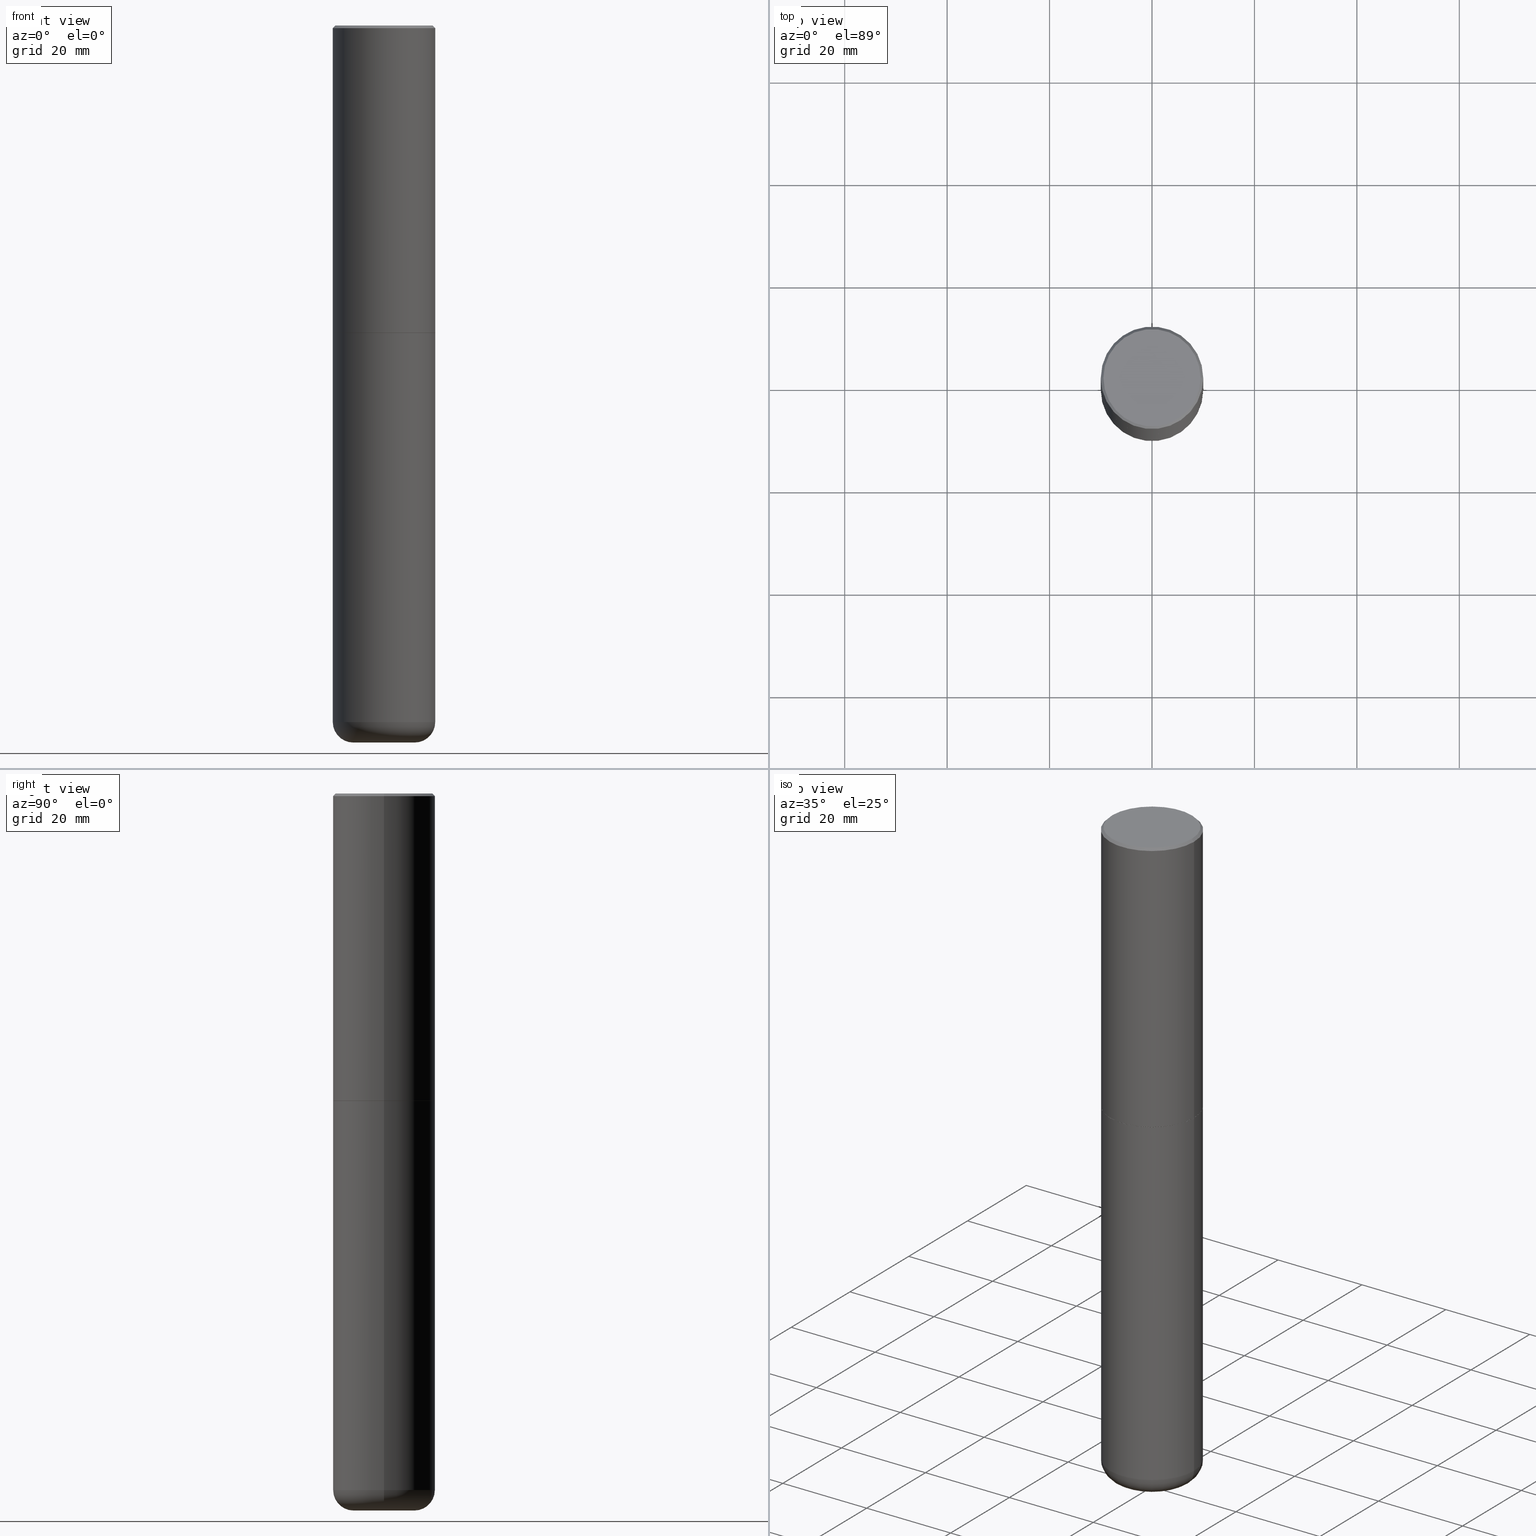
[diagram: canonical four-view strip — front | top / right | iso, engineering-drawing reading convention]
A machine part, canonical four-view strip (front | top / right | iso — engineering-drawing reading convention). The complete STEP part file that produces these views, byte-faithful:
ISO-10303-21;
HEADER;
FILE_DESCRIPTION (( 'STEP AP203' ),
    '1' );
FILE_NAME ('74862.STEP',
    '2024-05-02T19:25:09',
    ( '' ),
    ( '' ),
    'SwSTEP 2.0',
    'SolidWorks 2023',
    '' );
FILE_SCHEMA (( 'CONFIG_CONTROL_DESIGN' ));
ENDSEC;

DATA;
#1 = ORIENTED_EDGE ( 'NONE', *, *, #371, .T. ) ;
#2 = LINE ( 'NONE', #67, #36 ) ;
#3 = ORIENTED_EDGE ( 'NONE', *, *, #138, .F. ) ;
#4 = AXIS2_PLACEMENT_3D ( 'NONE', #26, #54, #183 ) ;
#5 = DIRECTION ( 'NONE',  ( -1.000000000000000000, 6.982962677686266711E-15, 0.000000000000000000 ) ) ;
#6 = APPROVAL ( #47, 'UNSPECIFIED' ) ;
#7 = CARTESIAN_POINT ( 'NONE',  ( -0.3937000000000001054, 2.679362779428220707E-15, -0.02000000000000008715 ) ) ;
#8 = ORIENTED_EDGE ( 'NONE', *, *, #17, .F. ) ;
#9 = VERTEX_POINT ( 'NONE', #107 ) ;
#10 = MECHANICAL_CONTEXT ( 'NONE', #149, 'mechanical' ) ;
#11 = AXIS2_PLACEMENT_3D ( 'NONE', #85, #112, #21 ) ;
#12 = CARTESIAN_POINT ( 'NONE',  ( -0.3736999999999999211, 2.644447966039789453E-15, 2.262311619753034352E-16 ) ) ;
#13 = ORIENTED_EDGE ( 'NONE', *, *, #59, .T. ) ;
#14 = SHAPE_DEFINITION_REPRESENTATION ( #83, #203 ) ;
#15 = CARTESIAN_POINT ( 'NONE',  ( -0.3937000000000002164, 2.797406750687515970E-15, -1.936584745033357576E-29 ) ) ;
#16 = DATE_AND_TIME ( #81, #405 ) ;
#17 = EDGE_CURVE ( 'NONE', #364, #9, #254, .T. ) ;
#18 = AXIS2_PLACEMENT_3D ( 'NONE', #301, #133, #182 ) ;
#19 = DIRECTION ( 'NONE',  ( 1.000000000000000000, -6.982962677686266711E-15, 0.000000000000000000 ) ) ;
#20 = APPROVAL_ROLE ( '' ) ;
#21 = DIRECTION ( 'NONE',  ( 1.000000000000000000, -6.982962677686261977E-15, 4.883557194083110659E-29 ) ) ;
#22 = CALENDAR_DATE ( 2024, 2, 5 ) ;
#23 = CARTESIAN_POINT ( 'NONE',  ( -0.3937000000000001054, 2.797406750687515181E-15, -1.936584745033357016E-29 ) ) ;
#24 = CC_DESIGN_SECURITY_CLASSIFICATION ( #95, ( #116 ) ) ;
#25 = FACE_OUTER_BOUND ( 'NONE', #256, .T. ) ;
#26 = CARTESIAN_POINT ( 'NONE',  ( 5.776686413970529753E-29, -8.247577218615279626E-15, -2.362200000000000077 ) ) ;
#27 = CARTESIAN_POINT ( 'NONE',  ( 5.776686413970529753E-29, -8.247577218615279626E-15, -2.362200000000000077 ) ) ;
#28 = EDGE_CURVE ( 'NONE', #9, #357, #294, .T. ) ;
#29 = DIRECTION ( 'NONE',  ( -1.000000000000000000, 7.105427357601006592E-15, 0.000000000000000000 ) ) ;
#30 = EDGE_LOOP ( 'NONE', ( #325, #336 ) ) ;
#31 = ORIENTED_EDGE ( 'NONE', *, *, #237, .T. ) ;
#32 = DESIGN_CONTEXT ( 'detailed design', #38, 'design' ) ;
#33 = DIRECTION ( 'NONE',  ( -2.445468806185136597E-29, 3.491481338843145583E-15, 1.000000000000000000 ) ) ;
#34 = EDGE_LOOP ( 'NONE', ( #251, #330, #381, #363 ) ) ;
#35 = VECTOR ( 'NONE', #297, 39.37007874015748143 ) ;
#36 = VECTOR ( 'NONE', #318, 39.37007874015748143 ) ;
#37 = EDGE_LOOP ( 'NONE', ( #167, #77, #123, #285 ) ) ;
#38 = APPLICATION_CONTEXT ( 'configuration controlled 3d designs of mechanical parts and assemblies' ) ;
#39 = DIRECTION ( 'NONE',  ( -2.445468806185136877E-29, 3.491481338843145188E-15, 1.000000000000000000 ) ) ;
#40 = CIRCLE ( 'NONE', #372, 0.3937000000000000499 ) ;
#41 = AXIS2_PLACEMENT_3D ( 'NONE', #415, #127, #5 ) ;
#42 = ORIENTED_EDGE ( 'NONE', *, *, #79, .F. ) ;
#43 = PERSON_AND_ORGANIZATION_ROLE ( 'design_owner' ) ;
#44 = DIRECTION ( 'NONE',  ( -2.445468806185136597E-29, 3.491481338843145583E-15, 1.000000000000000000 ) ) ;
#45 = PERSON_AND_ORGANIZATION ( #328, #88 ) ;
#46 = DIRECTION ( 'NONE',  ( -0.7071067811865454633, 2.468850131082235367E-15, -0.7071067811865495711 ) ) ;
#47 = APPROVAL_STATUS ( 'not_yet_approved' ) ;
#48 = AXIS2_PLACEMENT_3D ( 'NONE', #145, #147, #348 ) ;
#49 = AXIS2_PLACEMENT_3D ( 'NONE', #370, #377, #375 ) ;
#50 = CARTESIAN_POINT ( 'NONE',  ( -0.3937000000000002720, -1.359550931339130834E-15, -2.361199999999999743 ) ) ;
#51 = DATE_AND_TIME ( #207, #386 ) ;
#52 = LINE ( 'NONE', #180, #412 ) ;
#53 = CC_DESIGN_PERSON_AND_ORGANIZATION_ASSIGNMENT ( #298, #267, ( #159 ) ) ;
#54 = DIRECTION ( 'NONE',  ( -2.445468806185136597E-29, 3.491481338843145583E-15, 1.000000000000000000 ) ) ;
#55 = AXIS2_PLACEMENT_3D ( 'NONE', #250, #281, #311 ) ;
#56 = FACE_OUTER_BOUND ( 'NONE', #91, .T. ) ;
#57 = EDGE_CURVE ( 'NONE', #355, #96, #234, .T. ) ;
#58 = CARTESIAN_POINT ( 'NONE',  ( 0.3937000000000002720, -1.099327814348151984E-14, -2.361199999999999743 ) ) ;
#59 = EDGE_CURVE ( 'NONE', #93, #416, #290, .T. ) ;
#60 = FACE_OUTER_BOUND ( 'NONE', #37, .T. ) ;
#61 = ORIENTED_EDGE ( 'NONE', *, *, #154, .F. ) ;
#62 = DIRECTION ( 'NONE',  ( 1.000000000000000000, -6.982962677686266711E-15, 4.876176775795935793E-29 ) ) ;
#63 = APPROVAL_PERSON_ORGANIZATION ( #235, #276, #335 ) ;
#64 = EDGE_LOOP ( 'NONE', ( #365, #42 ) ) ;
#65 = ORIENTED_EDGE ( 'NONE', *, *, #333, .F. ) ;
#66 = EDGE_CURVE ( 'NONE', #158, #128, #101, .T. ) ;
#67 = CARTESIAN_POINT ( 'NONE',  ( -0.3926999999999999935, -5.457275895285365059E-15, -2.362200000000000077 ) ) ;
#68 = ORIENTED_EDGE ( 'NONE', *, *, #260, .F. ) ;
#69 = CIRCLE ( 'NONE', #361, 0.3926999999999999935 ) ;
#70 = EDGE_CURVE ( 'NONE', #128, #416, #175, .T. ) ;
#71 = ORIENTED_EDGE ( 'NONE', *, *, #263, .T. ) ;
#72 = CARTESIAN_POINT ( 'NONE',  ( 0.000000000000000000, 0.000000000000000000, 0.000000000000000000 ) ) ;
#73 = ORIENTED_EDGE ( 'NONE', *, *, #138, .T. ) ;
#74 = APPLICATION_PROTOCOL_DEFINITION ( 'international standard', 'config_control_design', 1994, #38 ) ;
#75 = CARTESIAN_POINT ( 'NONE',  ( 0.2362000000000000210, -2.034381431703735354E-14, -5.354300000000000281 ) ) ;
#76 = PERSON_AND_ORGANIZATION ( #328, #88 ) ;
#77 = ORIENTED_EDGE ( 'NONE', *, *, #57, .T. ) ;
#78 = COORDINATED_UNIVERSAL_TIME_OFFSET ( 5, 0, .BEHIND. ) ;
#79 = EDGE_CURVE ( 'NONE', #169, #99, #268, .T. ) ;
#80 = EDGE_LOOP ( 'NONE', ( #197, #312 ) ) ;
#81 = CALENDAR_DATE ( 2024, 2, 5 ) ;
#82 = DIRECTION ( 'NONE',  ( 1.000000000000000000, -6.982962677686270655E-15, 0.000000000000000000 ) ) ;
#83 = PRODUCT_DEFINITION_SHAPE ( 'NONE', 'NONE',  #159 ) ;
#84 = AXIS2_PLACEMENT_3D ( 'NONE', #388, #98, #284 ) ;
#85 = CARTESIAN_POINT ( 'NONE',  ( 1.309377362895707575E-28, -1.869443853256785386E-14, -5.354300000000000281 ) ) ;
#86 = DIRECTION ( 'NONE',  ( 1.000000000000000000, -6.982962677686266711E-15, 0.000000000000000000 ) ) ;
#87 = CARTESIAN_POINT ( 'NONE',  ( 0.3937000000000002164, -2.749192406205084794E-15, 1.919750796630861012E-29 ) ) ;
#88 = ORGANIZATION ( 'UNSPECIFIED', 'UNSPECIFIED', '' ) ;
#89 = FACE_OUTER_BOUND ( 'NONE', #64, .T. ) ;
#90 = PLANE ( 'NONE',  #271 ) ;
#91 = EDGE_LOOP ( 'NONE', ( #1, #288 ) ) ;
#92 = CARTESIAN_POINT ( 'NONE',  ( 2.609533152651356620E-15, 0.3736999999999999211, -1.191650995338022328E-15 ) ) ;
#93 = VERTEX_POINT ( 'NONE', #12 ) ;
#94 = DIRECTION ( 'NONE',  ( -2.445468806185136597E-29, 3.491481338843145583E-15, 1.000000000000000000 ) ) ;
#95 = SECURITY_CLASSIFICATION ( '', '', #404 ) ;
#96 = VERTEX_POINT ( 'NONE', #136 ) ;
#97 = EDGE_CURVE ( 'NONE', #93, #355, #187, .T. ) ;
#98 = DIRECTION ( 'NONE',  ( -2.445468806185136597E-29, 3.491481338843145583E-15, 1.000000000000000000 ) ) ;
#99 = VERTEX_POINT ( 'NONE', #389 ) ;
#100 = ADVANCED_FACE ( 'NONE', ( #105 ), #259, .T. ) ;
#101 = CIRCLE ( 'NONE', #195, 0.3937000000000002720 ) ;
#102 = ORIENTED_EDGE ( 'NONE', *, *, #79, .T. ) ;
#103 = AXIS2_PLACEMENT_3D ( 'NONE', #184, #246, #82 ) ;
#104 = ORIENTED_EDGE ( 'NONE', *, *, #97, .F. ) ;
#105 = FACE_OUTER_BOUND ( 'NONE', #383, .T. ) ;
#106 = PERSON_AND_ORGANIZATION ( #328, #88 ) ;
#107 = CARTESIAN_POINT ( 'NONE',  ( 0.3936999999999999389, -2.144363093877293707E-14, -5.354300000000000281 ) ) ;
#108 = APPROVAL_DATE_TIME ( #51, #6 ) ;
#109 = AXIS2_PLACEMENT_3D ( 'NONE', #27, #155, #216 ) ;
#110 = EDGE_LOOP ( 'NONE', ( #31, #266, #61, #8 ) ) ;
#111 = CALENDAR_DATE ( 2024, 2, 5 ) ;
#112 = DIRECTION ( 'NONE',  ( -2.445468806185136597E-29, 3.491481338843145583E-15, 1.000000000000000000 ) ) ;
#113 = APPROVAL_DATE_TIME ( #302, #276 ) ;
#114 = CC_DESIGN_PERSON_AND_ORGANIZATION_ASSIGNMENT ( #316, #43, ( #142 ) ) ;
#115 = DIRECTION ( 'NONE',  ( -2.445468806185136597E-29, 3.491481338843145583E-15, 1.000000000000000000 ) ) ;
#116 = PRODUCT_DEFINITION_FORMATION_WITH_SPECIFIED_SOURCE ( 'ANY', '', #142, .NOT_KNOWN. ) ;
#117 = ADVANCED_FACE ( 'NONE', ( #305 ), #248, .T. ) ;
#118 = LINE ( 'NONE', #23, #337 ) ;
#119 = CARTESIAN_POINT ( 'NONE',  ( -0.3926999999999999935, -5.451977440937141868E-15, -2.362200000000000077 ) ) ;
#120 = DIRECTION ( 'NONE',  ( -2.445468806185136877E-29, 3.491481338843145188E-15, 1.000000000000000000 ) ) ;
#121 =( GEOMETRIC_REPRESENTATION_CONTEXT ( 3 ) GLOBAL_UNCERTAINTY_ASSIGNED_CONTEXT ( ( #320 ) ) GLOBAL_UNIT_ASSIGNED_CONTEXT ( ( #226, #132, #170 ) ) REPRESENTATION_CONTEXT ( 'NONE', 'WORKASPACE' ) );
#122 = CARTESIAN_POINT ( 'NONE',  ( 0.2362000000000000766, -2.089372262790514846E-14, -5.511800000000000033 ) ) ;
#123 = ORIENTED_EDGE ( 'NONE', *, *, #333, .T. ) ;
#124 = CC_DESIGN_PERSON_AND_ORGANIZATION_ASSIGNMENT ( #174, #395, ( #116 ) ) ;
#125 = CARTESIAN_POINT ( 'NONE',  ( -0.3936999999999999389, -1.589703178188033670E-14, -5.354300000000000281 ) ) ;
#126 = ORIENTED_EDGE ( 'NONE', *, *, #215, .T. ) ;
#127 = DIRECTION ( 'NONE',  ( 2.445468806185136597E-29, -3.491481338843145583E-15, -1.000000000000000000 ) ) ;
#128 = VERTEX_POINT ( 'NONE', #50 ) ;
#129 = LENGTH_MEASURE_WITH_UNIT ( LENGTH_MEASURE( 0.02539999999999999897 ), #230 );
#130 = FACE_OUTER_BOUND ( 'NONE', #257, .T. ) ;
#131 = ORIENTED_EDGE ( 'NONE', *, *, #215, .F. ) ;
#132 =( NAMED_UNIT ( * ) PLANE_ANGLE_UNIT ( ) SI_UNIT ( $, .RADIAN. ) );
#133 = DIRECTION ( 'NONE',  ( -2.445468806185136597E-29, 3.491481338843145583E-15, 1.000000000000000000 ) ) ;
#134 = VERTEX_POINT ( 'NONE', #214 ) ;
#135 = AXIS2_PLACEMENT_3D ( 'NONE', #189, #314, #29 ) ;
#136 = CARTESIAN_POINT ( 'NONE',  ( 0.3937000000000001054, -2.770807688499516128E-15, -0.02000000000000008715 ) ) ;
#137 = EDGE_CURVE ( 'NONE', #99, #169, #69, .T. ) ;
#138 = EDGE_CURVE ( 'NONE', #350, #9, #360, .T. ) ;
#139 = ORIENTED_EDGE ( 'NONE', *, *, #146, .F. ) ;
#140 = CALENDAR_DATE ( 2024, 2, 5 ) ;
#141 = CARTESIAN_POINT ( 'NONE',  ( 5.776686413970529753E-29, -8.247577218615279626E-15, -2.362200000000000077 ) ) ;
#142 = PRODUCT ( '74862', '74862', '', ( #10 ) ) ;
#143 = AXIS2_PLACEMENT_3D ( 'NONE', #264, #399, #177 ) ;
#144 = AXIS2_PLACEMENT_3D ( 'NONE', #72, #291, #258 ) ;
#145 = CARTESIAN_POINT ( 'NONE',  ( 1.309377362895707575E-28, -1.869443853256785386E-14, -5.354300000000000281 ) ) ;
#146 = EDGE_CURVE ( 'NONE', #350, #134, #118, .T. ) ;
#147 = DIRECTION ( 'NONE',  ( -2.445468806185136597E-29, 3.491481338843145583E-15, 1.000000000000000000 ) ) ;
#148 = PERSON_AND_ORGANIZATION_ROLE ( 'design_supplier' ) ;
#149 = APPLICATION_CONTEXT ( 'configuration controlled 3d designs of mechanical parts and assemblies' ) ;
#150 = DIRECTION ( 'NONE',  ( -2.445468806185136877E-29, 3.491481338843145188E-15, 1.000000000000000000 ) ) ;
#151 = APPROVAL_PERSON_ORGANIZATION ( #369, #6, #20 ) ;
#152 = PLANE ( 'NONE',  #165 ) ;
#153 = DIRECTION ( 'NONE',  ( 0.7071067811866199593, -2.468850131083015945E-15, 0.7071067811864750752 ) ) ;
#154 = EDGE_CURVE ( 'NONE', #9, #350, #243, .T. ) ;
#155 = DIRECTION ( 'NONE',  ( -2.445468806185136597E-29, 3.491481338843145583E-15, 1.000000000000000000 ) ) ;
#156 = AXIS2_PLACEMENT_3D ( 'NONE', #309, #244, #86 ) ;
#157 = CARTESIAN_POINT ( 'NONE',  ( 4.890937612370294178E-31, -6.982962677686321191E-17, -0.02000000000000008715 ) ) ;
#158 = VERTEX_POINT ( 'NONE', #58 ) ;
#159 = PRODUCT_DEFINITION ( 'UNKNOWN', '', #116, #32 ) ;
#160 = DIRECTION ( 'NONE',  ( 1.000000000000000000, -6.982962677686266711E-15, 0.000000000000000000 ) ) ;
#161 = ORIENTED_EDGE ( 'NONE', *, *, #332, .F. ) ;
#162 = DIRECTION ( 'NONE',  ( -1.000000000000000000, 6.982962677686265922E-15, -4.876176775795935793E-29 ) ) ;
#163 = DIRECTION ( 'NONE',  ( 2.445468806185136597E-29, -3.491481338843145583E-15, -1.000000000000000000 ) ) ;
#164 = AXIS2_PLACEMENT_3D ( 'NONE', #75, #326, #368 ) ;
#165 = AXIS2_PLACEMENT_3D ( 'NONE', #279, #339, #186 ) ;
#166 = CC_DESIGN_PERSON_AND_ORGANIZATION_ASSIGNMENT ( #106, #148, ( #116 ) ) ;
#167 = ORIENTED_EDGE ( 'NONE', *, *, #231, .F. ) ;
#168 = DIRECTION ( 'NONE',  ( 1.000000000000000000, -6.982962677686270655E-15, 0.000000000000000000 ) ) ;
#169 = VERTEX_POINT ( 'NONE', #119 ) ;
#170 =( NAMED_UNIT ( * ) SI_UNIT ( $, .STERADIAN. ) SOLID_ANGLE_UNIT ( ) );
#171 = ORIENTED_EDGE ( 'NONE', *, *, #66, .F. ) ;
#172 = VERTEX_POINT ( 'NONE', #212 ) ;
#173 = ORIENTED_EDGE ( 'NONE', *, *, #205, .F. ) ;
#174 = PERSON_AND_ORGANIZATION ( #328, #88 ) ;
#175 = LINE ( 'NONE', #15, #35 ) ;
#176 = DATE_TIME_ROLE ( 'classification_date' ) ;
#177 = DIRECTION ( 'NONE',  ( 1.000000000000000000, -6.982962677686266711E-15, 4.877734241229876808E-29 ) ) ;
#178 = AXIS2_PLACEMENT_3D ( 'NONE', #345, #407, #19 ) ;
#179 = AXIS2_PLACEMENT_3D ( 'NONE', #225, #163, #387 ) ;
#180 = CARTESIAN_POINT ( 'NONE',  ( 0.3926999999999999935, -1.098978666214267525E-14, -2.362200000000000077 ) ) ;
#181 = APPROVAL_ROLE ( '' ) ;
#182 = DIRECTION ( 'NONE',  ( 1.000000000000000000, -6.982962677686266711E-15, 4.876176775795935793E-29 ) ) ;
#183 = DIRECTION ( 'NONE',  ( 1.000000000000000000, -6.982962677686265133E-15, 0.000000000000000000 ) ) ;
#184 = CARTESIAN_POINT ( 'NONE',  ( 1.347893496593123646E-28, -1.924434684343564878E-14, -5.511800000000000033 ) ) ;
#185 = DIRECTION ( 'NONE',  ( 1.000000000000000000, -6.982962677686267499E-15, 0.000000000000000000 ) ) ;
#186 = DIRECTION ( 'NONE',  ( 1.000000000000000000, -6.982962677686265922E-15, 4.876176775795935793E-29 ) ) ;
#187 = CIRCLE ( 'NONE', #143, 0.3736999999999999211 ) ;
#188 = AXIS2_PLACEMENT_3D ( 'NONE', #194, #323, #168 ) ;
#189 = CARTESIAN_POINT ( 'NONE',  ( -0.2362000000000000210, -1.701613659070249589E-14, -5.354300000000000281 ) ) ;
#190 = ADVANCED_FACE ( 'NONE', ( #56 ), #247, .F. ) ;
#191 = ORIENTED_EDGE ( 'NONE', *, *, #376, .T. ) ;
#192 = CARTESIAN_POINT ( 'NONE',  ( 1.347893496593123646E-28, -1.924434684343564878E-14, -5.511800000000000033 ) ) ;
#193 = ORIENTED_EDGE ( 'NONE', *, *, #28, .T. ) ;
#194 = CARTESIAN_POINT ( 'NONE',  ( 1.347893496593123646E-28, -1.924434684343564878E-14, -5.511800000000000033 ) ) ;
#195 = AXIS2_PLACEMENT_3D ( 'NONE', #327, #44, #293 ) ;
#196 = TOROIDAL_SURFACE ( 'NONE', #211, 0.2362000000000000210, 0.1574999999999998346 ) ;
#197 = ORIENTED_EDGE ( 'NONE', *, *, #97, .T. ) ;
#198 = EDGE_LOOP ( 'NONE', ( #319, #102, #126, #161 ) ) ;
#199 = DIRECTION ( 'NONE',  ( 0.7071067811865454633, -7.319954787623248157E-15, -0.7071067811865495711 ) ) ;
#200 = ADVANCED_FACE ( 'NONE', ( #274 ), #307, .T. ) ;
#201 = APPROVAL_STATUS ( 'not_yet_approved' ) ;
#202 = CC_DESIGN_APPROVAL ( #6, ( #95 ) ) ;
#203 = ADVANCED_BREP_SHAPE_REPRESENTATION ( '74862', ( #304, #299, #144 ), #121 ) ;
#204 = CARTESIAN_POINT ( 'NONE',  ( 0.3937000000000001054, -2.749192406205084005E-15, 1.919750796630860452E-29 ) ) ;
#205 = EDGE_CURVE ( 'NONE', #134, #357, #40, .T. ) ;
#206 = ORIENTED_EDGE ( 'NONE', *, *, #57, .F. ) ;
#207 = CALENDAR_DATE ( 2024, 2, 5 ) ;
#208 = DIRECTION ( 'NONE',  ( 1.000000000000000000, -6.982962677686261977E-15, 4.883557194083110659E-29 ) ) ;
#209 = DATE_AND_TIME ( #22, #228 ) ;
#210 = CLOSED_SHELL ( 'NONE', ( #289, #200, #342, #324, #400, #352, #296, #402 ) ) ;
#211 = AXIS2_PLACEMENT_3D ( 'NONE', #308, #213, #208 ) ;
#212 = CARTESIAN_POINT ( 'NONE',  ( -0.2362000000000000766, -1.673153834172531691E-14, -5.511800000000000033 ) ) ;
#213 = DIRECTION ( 'NONE',  ( -2.445468806185136597E-29, 3.491481338843145583E-15, 1.000000000000000000 ) ) ;
#214 = CARTESIAN_POINT ( 'NONE',  ( -0.3937000000000000499, -1.067360112490405038E-14, -2.362200000000000077 ) ) ;
#215 = EDGE_CURVE ( 'NONE', #99, #158, #52, .T. ) ;
#216 = DIRECTION ( 'NONE',  ( 1.000000000000000000, -6.982962677686267499E-15, 0.000000000000000000 ) ) ;
#217 = ORIENTED_EDGE ( 'NONE', *, *, #332, .T. ) ;
#218 = DIRECTION ( 'NONE',  ( 2.438088387897960049E-29, -3.491481338843145188E-15, -1.000000000000000000 ) ) ;
#219 = CC_DESIGN_APPROVAL ( #358, ( #116 ) ) ;
#220 = FACE_OUTER_BOUND ( 'NONE', #367, .T. ) ;
#221 = EDGE_LOOP ( 'NONE', ( #233, #392, #65, #68 ) ) ;
#222 = APPLICATION_PROTOCOL_DEFINITION ( 'international standard', 'config_control_design', 1994, #149 ) ;
#223 = CARTESIAN_POINT ( 'NONE',  ( 0.3736999999999999211, -2.667287895133367964E-15, 2.262311619753402158E-16 ) ) ;
#224 = EDGE_LOOP ( 'NONE', ( #359, #191, #171, #131 ) ) ;
#225 = CARTESIAN_POINT ( 'NONE',  ( 4.890937612370294178E-31, -6.982962677686321191E-17, -0.02000000000000008715 ) ) ;
#226 =( CONVERSION_BASED_UNIT ( 'INCH', #129 ) LENGTH_UNIT ( ) NAMED_UNIT ( #379 ) );
#227 = VECTOR ( 'NONE', #150, 39.37007874015748143 ) ;
#228 = LOCAL_TIME ( 15, 25, 9.000000000000000000, #306 ) ;
#229 = ORIENTED_EDGE ( 'NONE', *, *, #260, .T. ) ;
#230 =( LENGTH_UNIT ( ) NAMED_UNIT ( * ) SI_UNIT ( $, .METRE. ) );
#231 = EDGE_CURVE ( 'NONE', #355, #93, #391, .T. ) ;
#232 = ORIENTED_EDGE ( 'NONE', *, *, #408, .F. ) ;
#233 = ORIENTED_EDGE ( 'NONE', *, *, #66, .T. ) ;
#234 = LINE ( 'NONE', #262, #411 ) ;
#235 = PERSON_AND_ORGANIZATION ( #328, #88 ) ;
#236 = CIRCLE ( 'NONE', #156, 0.3937000000000001054 ) ;
#237 = EDGE_CURVE ( 'NONE', #364, #172, #378, .T. ) ;
#238 = ORIENTED_EDGE ( 'NONE', *, *, #17, .T. ) ;
#239 = DATE_AND_TIME ( #111, #329 ) ;
#240 = CARTESIAN_POINT ( 'NONE',  ( 5.776686413970529753E-29, -8.247577218615279626E-15, -2.362200000000000077 ) ) ;
#241 = COORDINATED_UNIVERSAL_TIME_OFFSET ( 5, 0, .BEHIND. ) ;
#242 = DIRECTION ( 'NONE',  ( -2.445468806185136597E-29, 3.491481338843145583E-15, 1.000000000000000000 ) ) ;
#243 = CIRCLE ( 'NONE', #48, 0.3937000000000001054 ) ;
#244 = DIRECTION ( 'NONE',  ( -2.445468806185136597E-29, 3.491481338843145583E-15, 1.000000000000000000 ) ) ;
#245 = CC_DESIGN_DATE_AND_TIME_ASSIGNMENT ( #239, #176, ( #95 ) ) ;
#246 = DIRECTION ( 'NONE',  ( -2.445468806185136597E-29, 3.491481338843145583E-15, 1.000000000000000000 ) ) ;
#247 = PLANE ( 'NONE',  #390 ) ;
#248 = TOROIDAL_SURFACE ( 'NONE', #11, 0.2362000000000000210, 0.1574999999999998346 ) ;
#249 = AXIS2_PLACEMENT_3D ( 'NONE', #157, #310, #160 ) ;
#250 = CARTESIAN_POINT ( 'NONE',  ( 5.774240945164344150E-29, -8.244085737276435042E-15, -2.361199999999999743 ) ) ;
#251 = ORIENTED_EDGE ( 'NONE', *, *, #154, .T. ) ;
#252 = FACE_OUTER_BOUND ( 'NONE', #30, .T. ) ;
#253 = CARTESIAN_POINT ( 'NONE',  ( 0.000000000000000000, 0.000000000000000000, 0.000000000000000000 ) ) ;
#254 = CIRCLE ( 'NONE', #164, 0.1574999999999997791 ) ;
#255 = CONICAL_SURFACE ( 'NONE', #84, 0.3926999999999999935, 0.7853981633975507526 ) ;
#256 = EDGE_LOOP ( 'NONE', ( #232, #315, #238, #3 ) ) ;
#257 = EDGE_LOOP ( 'NONE', ( #206, #104, #13, #71 ) ) ;
#258 = DIRECTION ( 'NONE',  ( 1.000000000000000000, 0.000000000000000000, 0.000000000000000000 ) ) ;
#259 = CYLINDRICAL_SURFACE ( 'NONE', #18, 0.3937000000000001054 ) ;
#260 = EDGE_CURVE ( 'NONE', #158, #96, #406, .T. ) ;
#261 = CONICAL_SURFACE ( 'NONE', #41, 0.3937000000000001054, 0.7853981633974453924 ) ;
#262 = CARTESIAN_POINT ( 'NONE',  ( 0.3937000000000001054, -2.770807688499516128E-15, -0.02000000000000008715 ) ) ;
#263 = EDGE_CURVE ( 'NONE', #416, #96, #236, .T. ) ;
#264 = CARTESIAN_POINT ( 'NONE',  ( -5.532412495976664402E-45, 7.898818803016371119E-31, 2.262311619753217762E-16 ) ) ;
#265 = DATE_TIME_ROLE ( 'creation_date' ) ;
#266 = ORIENTED_EDGE ( 'NONE', *, *, #408, .T. ) ;
#267 = PERSON_AND_ORGANIZATION_ROLE ( 'creator' ) ;
#268 = CIRCLE ( 'NONE', #321, 0.3926999999999999935 ) ;
#269 = DIRECTION ( 'NONE',  ( 1.000000000000000000, -6.982962677686265133E-15, 0.000000000000000000 ) ) ;
#270 = COORDINATED_UNIVERSAL_TIME_OFFSET ( 5, 0, .BEHIND. ) ;
#271 = AXIS2_PLACEMENT_3D ( 'NONE', #192, #349, #162 ) ;
#272 = ADVANCED_FACE ( 'NONE', ( #25 ), #196, .T. ) ;
#273 = DIRECTION ( 'NONE',  ( -1.000000000000000000, 6.982962677686265922E-15, -4.876176775795935793E-29 ) ) ;
#274 = FACE_OUTER_BOUND ( 'NONE', #221, .T. ) ;
#275 = APPROVAL_STATUS ( 'not_yet_approved' ) ;
#276 = APPROVAL ( #275, 'UNSPECIFIED' ) ;
#277 = CIRCLE ( 'NONE', #188, 0.2362000000000000766 ) ;
#278 = CARTESIAN_POINT ( 'NONE',  ( 5.776686413970529753E-29, -8.247577218615279626E-15, -2.362200000000000077 ) ) ;
#279 = CARTESIAN_POINT ( 'NONE',  ( 5.776686413970529753E-29, -8.247577218615279626E-15, -2.362200000000000077 ) ) ;
#280 = CIRCLE ( 'NONE', #249, 0.3937000000000001054 ) ;
#281 = DIRECTION ( 'NONE',  ( -2.445468806185136597E-29, 3.491481338843145583E-15, 1.000000000000000000 ) ) ;
#282 = ORIENTED_EDGE ( 'NONE', *, *, #263, .F. ) ;
#283 = FACE_OUTER_BOUND ( 'NONE', #34, .T. ) ;
#284 = DIRECTION ( 'NONE',  ( 1.000000000000000000, -6.982962677686265133E-15, 0.000000000000000000 ) ) ;
#285 = ORIENTED_EDGE ( 'NONE', *, *, #59, .F. ) ;
#286 = CIRCLE ( 'NONE', #109, 0.3937000000000000499 ) ;
#287 = DIRECTION ( 'NONE',  ( 1.000000000000000000, -6.982962677686266711E-15, 4.876176775795935793E-29 ) ) ;
#288 = ORIENTED_EDGE ( 'NONE', *, *, #205, .T. ) ;
#289 = ADVANCED_FACE ( 'NONE', ( #344 ), #303, .T. ) ;
#290 = LINE ( 'NONE', #334, #397 ) ;
#291 = DIRECTION ( 'NONE',  ( 0.000000000000000000, 0.000000000000000000, 1.000000000000000000 ) ) ;
#292 = LOCAL_TIME ( 15, 25, 9.000000000000000000, #78 ) ;
#293 = DIRECTION ( 'NONE',  ( 1.000000000000000000, -6.982962677686265922E-15, 0.000000000000000000 ) ) ;
#294 = LINE ( 'NONE', #204, #300 ) ;
#295 = PERSON_AND_ORGANIZATION_ROLE ( 'classification_officer' ) ;
#296 = ADVANCED_FACE ( 'NONE', ( #89 ), #152, .F. ) ;
#297 = DIRECTION ( 'NONE',  ( -2.445468806185136877E-29, 3.491481338843145188E-15, 1.000000000000000000 ) ) ;
#298 = PERSON_AND_ORGANIZATION ( #328, #88 ) ;
#299 = MANIFOLD_SOLID_BREP ( 'Body-Move/Copy2[2]', #210 ) ;
#300 = VECTOR ( 'NONE', #39, 39.37007874015748143 ) ;
#301 = CARTESIAN_POINT ( 'NONE',  ( 0.000000000000000000, 0.000000000000000000, 0.000000000000000000 ) ) ;
#302 = DATE_AND_TIME ( #140, #292 ) ;
#303 = CONICAL_SURFACE ( 'NONE', #4, 0.3926999999999999935, 0.7853981633975507526 ) ;
#304 = MANIFOLD_SOLID_BREP ( 'Body-Move/Copy2[1]', #385 ) ;
#305 = FACE_OUTER_BOUND ( 'NONE', #110, .T. ) ;
#306 = COORDINATED_UNIVERSAL_TIME_OFFSET ( 5, 0, .BEHIND. ) ;
#307 = CYLINDRICAL_SURFACE ( 'NONE', #362, 0.3937000000000002164 ) ;
#308 = CARTESIAN_POINT ( 'NONE',  ( 1.309377362895707575E-28, -1.869443853256785386E-14, -5.354300000000000281 ) ) ;
#309 = CARTESIAN_POINT ( 'NONE',  ( 4.890937612370294178E-31, -6.982962677686321191E-17, -0.02000000000000008715 ) ) ;
#310 = DIRECTION ( 'NONE',  ( -2.445468806185136597E-29, 3.491481338843145583E-15, 1.000000000000000000 ) ) ;
#311 = DIRECTION ( 'NONE',  ( 1.000000000000000000, -6.982962677686265922E-15, 0.000000000000000000 ) ) ;
#312 = ORIENTED_EDGE ( 'NONE', *, *, #231, .T. ) ;
#313 = AXIS2_PLACEMENT_3D ( 'NONE', #410, #33, #62 ) ;
#314 = DIRECTION ( 'NONE',  ( 7.105427357601001859E-15, 1.000000000000000000, -3.491481338843145583E-15 ) ) ;
#315 = ORIENTED_EDGE ( 'NONE', *, *, #417, .T. ) ;
#316 = PERSON_AND_ORGANIZATION ( #328, #88 ) ;
#317 = CC_DESIGN_DATE_AND_TIME_ASSIGNMENT ( #209, #265, ( #159 ) ) ;
#318 = DIRECTION ( 'NONE',  ( -0.7071067811866199593, 7.493145998870616062E-15, 0.7071067811864750752 ) ) ;
#319 = ORIENTED_EDGE ( 'NONE', *, *, #376, .F. ) ;
#320 = UNCERTAINTY_MEASURE_WITH_UNIT (LENGTH_MEASURE( 1.000000000000000082E-05 ), #226, 'distance_accuracy_value', 'NONE');
#321 = AXIS2_PLACEMENT_3D ( 'NONE', #141, #394, #269 ) ;
#322 = AXIS2_PLACEMENT_3D ( 'NONE', #92, #218, #351 ) ;
#323 = DIRECTION ( 'NONE',  ( -2.445468806185136597E-29, 3.491481338843145583E-15, 1.000000000000000000 ) ) ;
#324 = ADVANCED_FACE ( 'NONE', ( #130 ), #398, .T. ) ;
#325 = ORIENTED_EDGE ( 'NONE', *, *, #237, .F. ) ;
#326 = DIRECTION ( 'NONE',  ( -6.982962677686266711E-15, -1.000000000000000000, 3.491481338843145583E-15 ) ) ;
#327 = CARTESIAN_POINT ( 'NONE',  ( 5.774240945164344150E-29, -8.244085737276435042E-15, -2.361199999999999743 ) ) ;
#328 = PERSON ( 'UNSPECIFIED', 'UNSPECIFIED', 'UNSPECIFIED', ('UNSPECIFIED'), ('UNSPECIFIED'), ('UNSPECIFIED') ) ;
#329 = LOCAL_TIME ( 15, 25, 9.000000000000000000, #241 ) ;
#330 = ORIENTED_EDGE ( 'NONE', *, *, #146, .T. ) ;
#331 = APPROVAL_DATE_TIME ( #16, #358 ) ;
#332 = EDGE_CURVE ( 'NONE', #128, #158, #366, .T. ) ;
#333 = EDGE_CURVE ( 'NONE', #96, #416, #280, .T. ) ;
#334 = CARTESIAN_POINT ( 'NONE',  ( -0.3937000000000001054, 2.679362779428220707E-15, -0.02000000000000008715 ) ) ;
#335 = APPROVAL_ROLE ( '' ) ;
#336 = ORIENTED_EDGE ( 'NONE', *, *, #417, .F. ) ;
#337 = VECTOR ( 'NONE', #120, 39.37007874015748143 ) ;
#338 = CIRCLE ( 'NONE', #135, 0.1574999999999997791 ) ;
#339 = DIRECTION ( 'NONE',  ( -2.438088387897960049E-29, 3.491481338843145188E-15, 1.000000000000000000 ) ) ;
#340 = COORDINATED_UNIVERSAL_TIME_OFFSET ( 5, 0, .BEHIND. ) ;
#341 = ADVANCED_FACE ( 'NONE', ( #252 ), #90, .T. ) ;
#342 = ADVANCED_FACE ( 'NONE', ( #60 ), #261, .T. ) ;
#343 = DIRECTION ( 'NONE',  ( 2.438088387897960049E-29, -3.491481338843145188E-15, -1.000000000000000000 ) ) ;
#344 = FACE_OUTER_BOUND ( 'NONE', #224, .T. ) ;
#345 = CARTESIAN_POINT ( 'NONE',  ( 1.309377362895707575E-28, -1.869443853256785386E-14, -5.354300000000000281 ) ) ;
#346 = AXIS2_PLACEMENT_3D ( 'NONE', #253, #94, #287 ) ;
#347 = PRODUCT_RELATED_PRODUCT_CATEGORY ( 'detail', '', ( #142 ) ) ;
#348 = DIRECTION ( 'NONE',  ( 1.000000000000000000, -6.982962677686266711E-15, 0.000000000000000000 ) ) ;
#349 = DIRECTION ( 'NONE',  ( 2.438088387897960049E-29, -3.491481338843145188E-15, -1.000000000000000000 ) ) ;
#350 = VERTEX_POINT ( 'NONE', #125 ) ;
#351 = DIRECTION ( 'NONE',  ( -1.000000000000000000, 6.982962677686265922E-15, -4.876176775795935793E-29 ) ) ;
#352 = ADVANCED_FACE ( 'NONE', ( #380 ), #255, .T. ) ;
#353 = APPROVAL_PERSON_ORGANIZATION ( #76, #358, #181 ) ;
#354 = FACE_OUTER_BOUND ( 'NONE', #80, .T. ) ;
#355 = VERTEX_POINT ( 'NONE', #223 ) ;
#356 = CARTESIAN_POINT ( 'NONE',  ( 0.3937000000000000499, -1.099676962482036284E-14, -2.362200000000000077 ) ) ;
#357 = VERTEX_POINT ( 'NONE', #356 ) ;
#358 = APPROVAL ( #201, 'UNSPECIFIED' ) ;
#359 = ORIENTED_EDGE ( 'NONE', *, *, #137, .T. ) ;
#360 = CIRCLE ( 'NONE', #178, 0.3937000000000001054 ) ;
#361 = AXIS2_PLACEMENT_3D ( 'NONE', #278, #374, #373 ) ;
#362 = AXIS2_PLACEMENT_3D ( 'NONE', #403, #115, #401 ) ;
#363 = ORIENTED_EDGE ( 'NONE', *, *, #28, .F. ) ;
#364 = VERTEX_POINT ( 'NONE', #122 ) ;
#365 = ORIENTED_EDGE ( 'NONE', *, *, #137, .F. ) ;
#366 = CIRCLE ( 'NONE', #55, 0.3937000000000002720 ) ;
#367 = EDGE_LOOP ( 'NONE', ( #396, #217, #229, #282 ) ) ;
#368 = DIRECTION ( 'NONE',  ( 1.000000000000000000, -6.982962677686272233E-15, 0.000000000000000000 ) ) ;
#369 = PERSON_AND_ORGANIZATION ( #328, #88 ) ;
#370 = CARTESIAN_POINT ( 'NONE',  ( -5.532412495976664402E-45, 7.898818803016371119E-31, 2.262311619753217762E-16 ) ) ;
#371 = EDGE_CURVE ( 'NONE', #357, #134, #286, .T. ) ;
#372 = AXIS2_PLACEMENT_3D ( 'NONE', #240, #242, #185 ) ;
#373 = DIRECTION ( 'NONE',  ( 1.000000000000000000, -6.982962677686265133E-15, 0.000000000000000000 ) ) ;
#374 = DIRECTION ( 'NONE',  ( -2.445468806185136597E-29, 3.491481338843145583E-15, 1.000000000000000000 ) ) ;
#375 = DIRECTION ( 'NONE',  ( 1.000000000000000000, -6.982962677686266711E-15, 4.877734241229876808E-29 ) ) ;
#376 = EDGE_CURVE ( 'NONE', #169, #128, #2, .T. ) ;
#377 = DIRECTION ( 'NONE',  ( -2.445468806185136597E-29, 3.491481338843145583E-15, 1.000000000000000000 ) ) ;
#378 = CIRCLE ( 'NONE', #103, 0.2362000000000000766 ) ;
#379 = DIMENSIONAL_EXPONENTS ( 1.000000000000000000, 0.000000000000000000, 0.000000000000000000, 0.000000000000000000, 0.000000000000000000, 0.000000000000000000, 0.000000000000000000 ) ;
#380 = FACE_OUTER_BOUND ( 'NONE', #198, .T. ) ;
#381 = ORIENTED_EDGE ( 'NONE', *, *, #371, .F. ) ;
#382 = CYLINDRICAL_SURFACE ( 'NONE', #313, 0.3937000000000002164 ) ;
#383 = EDGE_LOOP ( 'NONE', ( #139, #73, #193, #173 ) ) ;
#384 = PLANE ( 'NONE',  #322 ) ;
#385 = CLOSED_SHELL ( 'NONE', ( #414, #117, #190, #100, #272, #341 ) ) ;
#386 = LOCAL_TIME ( 15, 25, 9.000000000000000000, #340 ) ;
#387 = DIRECTION ( 'NONE',  ( -1.000000000000000000, 6.982962677686266711E-15, 0.000000000000000000 ) ) ;
#388 = CARTESIAN_POINT ( 'NONE',  ( 5.776686413970529753E-29, -8.247577218615279626E-15, -2.362200000000000077 ) ) ;
#389 = CARTESIAN_POINT ( 'NONE',  ( 0.3926999999999999935, -1.098978666214267525E-14, -2.362200000000000077 ) ) ;
#390 = AXIS2_PLACEMENT_3D ( 'NONE', #409, #343, #273 ) ;
#391 = CIRCLE ( 'NONE', #49, 0.3736999999999999211 ) ;
#392 = ORIENTED_EDGE ( 'NONE', *, *, #70, .T. ) ;
#393 = CC_DESIGN_PERSON_AND_ORGANIZATION_ASSIGNMENT ( #45, #295, ( #95 ) ) ;
#394 = DIRECTION ( 'NONE',  ( -2.445468806185136597E-29, 3.491481338843145583E-15, 1.000000000000000000 ) ) ;
#395 = PERSON_AND_ORGANIZATION_ROLE ( 'creator' ) ;
#396 = ORIENTED_EDGE ( 'NONE', *, *, #70, .F. ) ;
#397 = VECTOR ( 'NONE', #46, 39.37007874015748143 ) ;
#398 = CONICAL_SURFACE ( 'NONE', #179, 0.3937000000000001054, 0.7853981633974453924 ) ;
#399 = DIRECTION ( 'NONE',  ( -2.445468806185136597E-29, 3.491481338843145583E-15, 1.000000000000000000 ) ) ;
#400 = ADVANCED_FACE ( 'NONE', ( #220 ), #382, .T. ) ;
#401 = DIRECTION ( 'NONE',  ( 1.000000000000000000, -6.982962677686266711E-15, 4.876176775795935793E-29 ) ) ;
#402 = ADVANCED_FACE ( 'NONE', ( #354 ), #384, .F. ) ;
#403 = CARTESIAN_POINT ( 'NONE',  ( 0.000000000000000000, 0.000000000000000000, 0.000000000000000000 ) ) ;
#404 = SECURITY_CLASSIFICATION_LEVEL ( 'unclassified' ) ;
#405 = LOCAL_TIME ( 15, 25, 9.000000000000000000, #270 ) ;
#406 = LINE ( 'NONE', #87, #227 ) ;
#407 = DIRECTION ( 'NONE',  ( -2.445468806185136597E-29, 3.491481338843145583E-15, 1.000000000000000000 ) ) ;
#408 = EDGE_CURVE ( 'NONE', #172, #350, #338, .T. ) ;
#409 = CARTESIAN_POINT ( 'NONE',  ( 5.776686413970529753E-29, -8.247577218615279626E-15, -2.362200000000000077 ) ) ;
#410 = CARTESIAN_POINT ( 'NONE',  ( 0.000000000000000000, 0.000000000000000000, 0.000000000000000000 ) ) ;
#411 = VECTOR ( 'NONE', #199, 39.37007874015748143 ) ;
#412 = VECTOR ( 'NONE', #153, 39.37007874015748143 ) ;
#413 = CC_DESIGN_APPROVAL ( #276, ( #159 ) ) ;
#414 = ADVANCED_FACE ( 'NONE', ( #283 ), #418, .T. ) ;
#415 = CARTESIAN_POINT ( 'NONE',  ( 4.890937612370294178E-31, -6.982962677686321191E-17, -0.02000000000000008715 ) ) ;
#416 = VERTEX_POINT ( 'NONE', #7 ) ;
#417 = EDGE_CURVE ( 'NONE', #172, #364, #277, .T. ) ;
#418 = CYLINDRICAL_SURFACE ( 'NONE', #346, 0.3937000000000001054 ) ;
ENDSEC;
END-ISO-10303-21;
